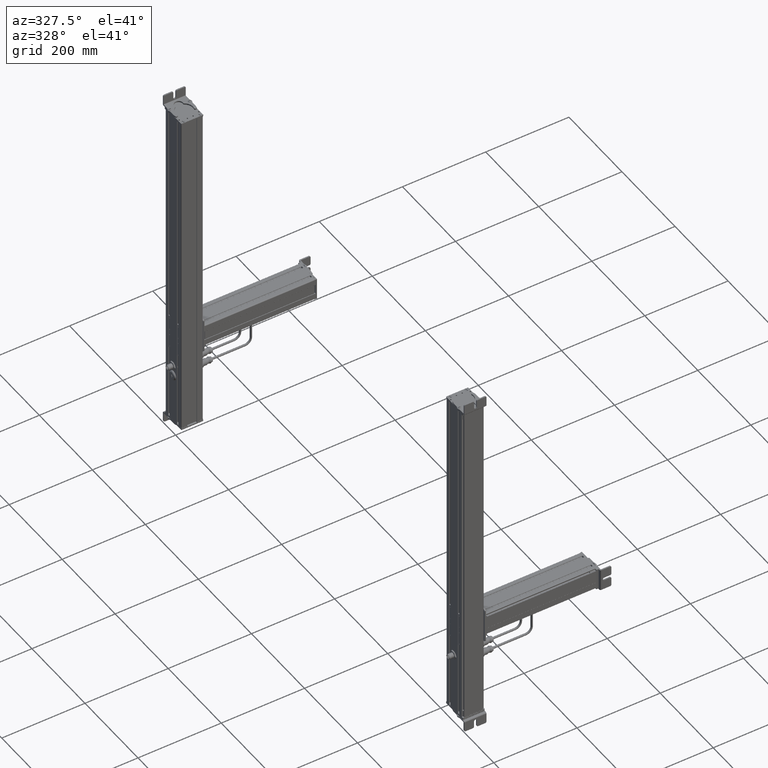
[diagram: clean part render]
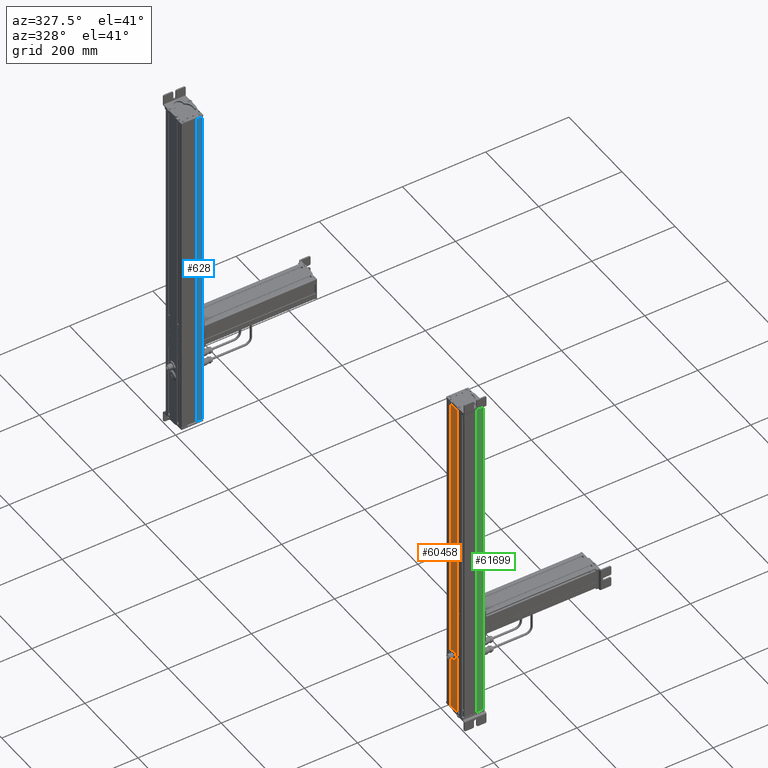
[diagram: same view with three faces highlighted in distinct colors, each labeled with its STEP entity id]
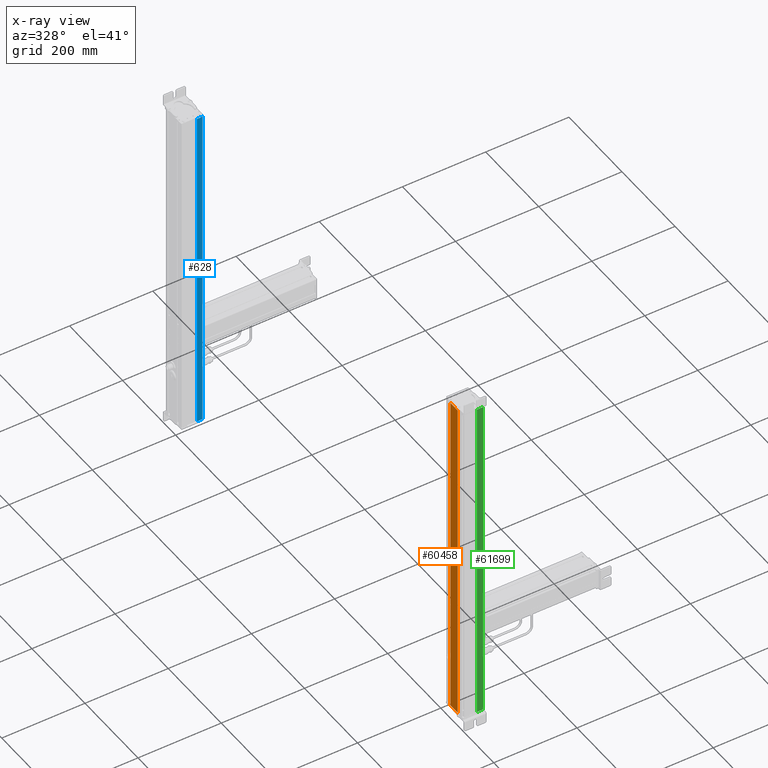
[diagram: x-ray of the same camera — body ghosted, the three highlighted faces saturated]
A machine part, auxiliary view with three faces highlighted in distinct colors.
The next image is the same camera in x-ray (body ghosted, the three faces saturated) — at least one of them is partly hidden behind the body in this view.
Their STEP definitions:

[orange] entity #60458 — the highlighted planar face has unit normal (-1, 0, 0).
#59699=CARTESIAN_POINT('Axis2P3D Location',(613.195548937,133.067790275,0.)) ;
#60411=CARTESIAN_POINT('Vertex',(613.195548938,166.010394004,0.)) ;
#60414=CARTESIAN_POINT('Line Origine',(613.195548938,166.010394004,406.)) ;
#60418=CARTESIAN_POINT('Vertex',(613.195548938,166.010394004,812.)) ;
#60433=CARTESIAN_POINT('Line Origine',(613.195548937,152.38909214,0.)) ;
#60437=CARTESIAN_POINT('Vertex',(613.195548937,138.767790274,0.)) ;
#60440=CARTESIAN_POINT('Line Origine',(613.195548937,138.767790274,406.)) ;
#60444=CARTESIAN_POINT('Vertex',(613.195548937,138.767790274,812.)) ;
#60447=CARTESIAN_POINT('Line Origine',(613.195548937,152.38909214,812.)) ;
#59700=DIRECTION('Axis2P3D Direction',(-1.,0.,0.)) ;
#59701=DIRECTION('Axis2P3D XDirection',(0.,-1.,0.)) ;
#60415=DIRECTION('Vector Direction',(0.,0.,1.)) ;
#60434=DIRECTION('Vector Direction',(0.,-1.,0.)) ;
#60441=DIRECTION('Vector Direction',(0.,0.,1.)) ;
#60448=DIRECTION('Vector Direction',(0.,-1.,0.)) ;
#59702=AXIS2_PLACEMENT_3D('Plane Axis2P3D',#59699,#59700,#59701) ;
#60453=ORIENTED_EDGE('',*,*,#60420,.F.) ;
#60454=ORIENTED_EDGE('',*,*,#60439,.T.) ;
#60455=ORIENTED_EDGE('',*,*,#60446,.T.) ;
#60456=ORIENTED_EDGE('',*,*,#60451,.F.) ;
#60416=VECTOR('Line Direction',#60415,1.) ;
#60435=VECTOR('Line Direction',#60434,1.) ;
#60442=VECTOR('Line Direction',#60441,1.) ;
#60449=VECTOR('Line Direction',#60448,1.) ;
#60458=ADVANCED_FACE('Body.2',(#60457),#59703,.T.) ;
#60420=EDGE_CURVE('',#60412,#60419,#60417,.T.) ;
#60439=EDGE_CURVE('',#60412,#60438,#60436,.T.) ;
#60446=EDGE_CURVE('',#60438,#60445,#60443,.T.) ;
#60451=EDGE_CURVE('',#60419,#60445,#60450,.T.) ;
#60452=EDGE_LOOP('',(#60453,#60454,#60455,#60456)) ;
#60457=FACE_OUTER_BOUND('',#60452,.T.) ;
#60417=LINE('Line',#60414,#60416) ;
#60436=LINE('Line',#60433,#60435) ;
#60443=LINE('Line',#60440,#60442) ;
#60450=LINE('Line',#60447,#60449) ;
#59703=PLANE('Plane',#59702) ;
#60412=VERTEX_POINT('',#60411) ;
#60419=VERTEX_POINT('',#60418) ;
#60438=VERTEX_POINT('',#60437) ;
#60445=VERTEX_POINT('',#60444) ;

[blue] entity #628 — the highlighted planar face has unit normal (0, -1, 0).
#576=CARTESIAN_POINT('Vertex',(627.895548938,182.060203323,0.)) ;
#579=CARTESIAN_POINT('Line Origine',(627.895548938,182.060203323,406.)) ;
#583=CARTESIAN_POINT('Vertex',(627.895548938,182.060203323,812.)) ;
#598=CARTESIAN_POINT('Axis2P3D Location',(664.195883662,182.060203323,0.)) ;
#603=CARTESIAN_POINT('Line Origine',(621.545548937,182.060203323,0.)) ;
#607=CARTESIAN_POINT('Vertex',(615.195548937,182.060203323,0.)) ;
#610=CARTESIAN_POINT('Line Origine',(615.195548937,182.060203323,406.)) ;
#614=CARTESIAN_POINT('Vertex',(615.195548937,182.060203323,812.)) ;
#617=CARTESIAN_POINT('Line Origine',(621.545548937,182.060203323,812.)) ;
#580=DIRECTION('Vector Direction',(0.,0.,1.)) ;
#599=DIRECTION('Axis2P3D Direction',(0.,1.,-0.)) ;
#600=DIRECTION('Axis2P3D XDirection',(-1.,0.,0.)) ;
#604=DIRECTION('Vector Direction',(-1.,0.,0.)) ;
#611=DIRECTION('Vector Direction',(0.,0.,1.)) ;
#618=DIRECTION('Vector Direction',(-1.,0.,0.)) ;
#601=AXIS2_PLACEMENT_3D('Plane Axis2P3D',#598,#599,#600) ;
#623=ORIENTED_EDGE('',*,*,#585,.F.) ;
#624=ORIENTED_EDGE('',*,*,#609,.T.) ;
#625=ORIENTED_EDGE('',*,*,#616,.T.) ;
#626=ORIENTED_EDGE('',*,*,#621,.F.) ;
#581=VECTOR('Line Direction',#580,1.) ;
#605=VECTOR('Line Direction',#604,1.) ;
#612=VECTOR('Line Direction',#611,1.) ;
#619=VECTOR('Line Direction',#618,1.) ;
#628=ADVANCED_FACE('Body.2',(#627),#602,.T.) ;
#585=EDGE_CURVE('',#577,#584,#582,.T.) ;
#609=EDGE_CURVE('',#577,#608,#606,.T.) ;
#616=EDGE_CURVE('',#608,#615,#613,.T.) ;
#621=EDGE_CURVE('',#584,#615,#620,.T.) ;
#622=EDGE_LOOP('',(#623,#624,#625,#626)) ;
#627=FACE_OUTER_BOUND('',#622,.T.) ;
#582=LINE('Line',#579,#581) ;
#606=LINE('Line',#603,#605) ;
#613=LINE('Line',#610,#612) ;
#620=LINE('Line',#617,#619) ;
#602=PLANE('Plane',#601) ;
#577=VERTEX_POINT('',#576) ;
#584=VERTEX_POINT('',#583) ;
#608=VERTEX_POINT('',#607) ;
#615=VERTEX_POINT('',#614) ;

[green] entity #61699 — the highlighted planar face has unit normal (0, -1, 0).
#61519=CARTESIAN_POINT('Axis2P3D Location',(647.67209889,120.060780121,0.)) ;
#61652=CARTESIAN_POINT('Vertex',(647.67209889,120.060780121,812.)) ;
#61659=CARTESIAN_POINT('Vertex',(647.67209889,120.060780121,0.)) ;
#61662=CARTESIAN_POINT('Line Origine',(647.67209889,120.060780121,406.)) ;
#61674=CARTESIAN_POINT('Line Origine',(654.908380451,120.060780121,0.)) ;
#61678=CARTESIAN_POINT('Vertex',(662.144662012,120.060780121,0.)) ;
#61681=CARTESIAN_POINT('Line Origine',(662.144662012,120.060780121,406.)) ;
#61685=CARTESIAN_POINT('Vertex',(662.144662012,120.060780121,812.)) ;
#61688=CARTESIAN_POINT('Line Origine',(654.908380451,120.060780121,812.)) ;
#61520=DIRECTION('Axis2P3D Direction',(0.,-1.,0.)) ;
#61521=DIRECTION('Axis2P3D XDirection',(1.,0.,0.)) ;
#61663=DIRECTION('Vector Direction',(0.,0.,1.)) ;
#61675=DIRECTION('Vector Direction',(1.,0.,0.)) ;
#61682=DIRECTION('Vector Direction',(0.,0.,1.)) ;
#61689=DIRECTION('Vector Direction',(1.,0.,0.)) ;
#61522=AXIS2_PLACEMENT_3D('Plane Axis2P3D',#61519,#61520,#61521) ;
#61694=ORIENTED_EDGE('',*,*,#61666,.F.) ;
#61695=ORIENTED_EDGE('',*,*,#61680,.T.) ;
#61696=ORIENTED_EDGE('',*,*,#61687,.T.) ;
#61697=ORIENTED_EDGE('',*,*,#61692,.F.) ;
#61664=VECTOR('Line Direction',#61663,1.) ;
#61676=VECTOR('Line Direction',#61675,1.) ;
#61683=VECTOR('Line Direction',#61682,1.) ;
#61690=VECTOR('Line Direction',#61689,1.) ;
#61699=ADVANCED_FACE('Body.2',(#61698),#61523,.T.) ;
#61666=EDGE_CURVE('',#61660,#61653,#61665,.T.) ;
#61680=EDGE_CURVE('',#61660,#61679,#61677,.T.) ;
#61687=EDGE_CURVE('',#61679,#61686,#61684,.T.) ;
#61692=EDGE_CURVE('',#61653,#61686,#61691,.T.) ;
#61693=EDGE_LOOP('',(#61694,#61695,#61696,#61697)) ;
#61698=FACE_OUTER_BOUND('',#61693,.T.) ;
#61665=LINE('Line',#61662,#61664) ;
#61677=LINE('Line',#61674,#61676) ;
#61684=LINE('Line',#61681,#61683) ;
#61691=LINE('Line',#61688,#61690) ;
#61523=PLANE('Plane',#61522) ;
#61653=VERTEX_POINT('',#61652) ;
#61660=VERTEX_POINT('',#61659) ;
#61679=VERTEX_POINT('',#61678) ;
#61686=VERTEX_POINT('',#61685) ;